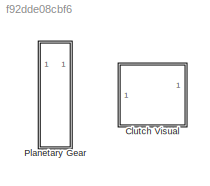
MODEL slx_f92dde08cbf6
KIND library
CONFIG SolverName = VariableStepAuto
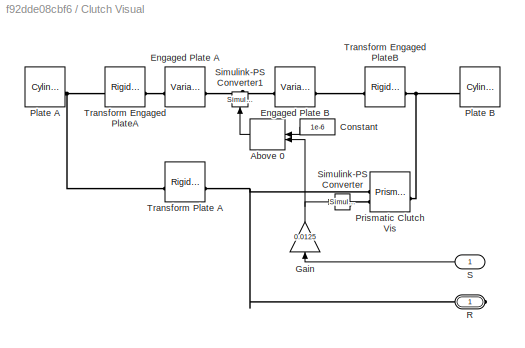
BLOCK [SubSystem] Clutch Visual
BLOCK [MinMax] Clutch Visual/Above 0
  Function = max
  Inputs = 2
  ZeroCross = off
BLOCK [Constant] Clutch Visual/Constant
  Value = 1e-6
BLOCK [Reference] Clutch Visual/Engaged Plate A  REF=sm_lib/Body Elements/Variable Mass/Variable
Cylindrical Solid
  NameLocation = top
  SourceBlock = sm_lib/Body Elements/Variable Mass/Variable\nCylindrical Solid
  SourceType = Variable\nCylindrical Solid
BLOCK [Reference] Clutch Visual/Engaged Plate B  REF=sm_lib/Body Elements/Variable Mass/Variable
Cylindrical Solid
  NameLocation = top
  SourceBlock = sm_lib/Body Elements/Variable Mass/Variable\nCylindrical Solid
  SourceType = Variable\nCylindrical Solid
BLOCK [Gain] Clutch Visual/Gain
  Gain = 0.0125
  NameLocation = left
BLOCK [Reference] Clutch Visual/Plate A  REF=sm_lib/Body Elements/Cylindrical Solid
  SourceBlock = sm_lib/Body Elements/Cylindrical Solid
  SourceType = Cylindrical Solid
BLOCK [Reference] Clutch Visual/Plate B  REF=sm_lib/Body Elements/Cylindrical Solid
  SourceBlock = sm_lib/Body Elements/Cylindrical Solid
  SourceType = Cylindrical Solid
BLOCK [Reference] Clutch Visual/Prismatic Clutch Vis  REF=sm_lib/Joints/Prismatic
Joint
  SourceBlock = sm_lib/Joints/Prismatic\nJoint
  SourceType = Prismatic\nJoint
BLOCK [PMIOPort] Clutch Visual/R
  Side = Right
BLOCK [Inport] Clutch Visual/S
BLOCK [Reference] Clutch Visual/Simulink-PS Converter  REF=nesl_utility/Simulink-PS
Converter
  NameLocation = top
  SourceBlock = nesl_utility/Simulink-PS\nConverter
  SourceType = Simulink-PS\nConverter
BLOCK [Reference] Clutch Visual/Simulink-PS Converter1  REF=nesl_utility/Simulink-PS
Converter
  SourceBlock = nesl_utility/Simulink-PS\nConverter
  SourceType = Simulink-PS\nConverter
BLOCK [Reference] Clutch Visual/Transform Engaged PlateA  REF=sm_lib/Frames and
Transforms/Rigid
Transform
  SourceBlock = sm_lib/Frames and\nTransforms/Rigid\nTransform
  SourceType = Rigid\nTransform
BLOCK [Reference] Clutch Visual/Transform Engaged PlateB  REF=sm_lib/Frames and
Transforms/Rigid
Transform
  SourceBlock = sm_lib/Frames and\nTransforms/Rigid\nTransform
  SourceType = Rigid\nTransform
BLOCK [Reference] Clutch Visual/Transform Plate A  REF=sm_lib/Frames and
Transforms/Rigid
Transform
  SourceBlock = sm_lib/Frames and\nTransforms/Rigid\nTransform
  SourceType = Rigid\nTransform
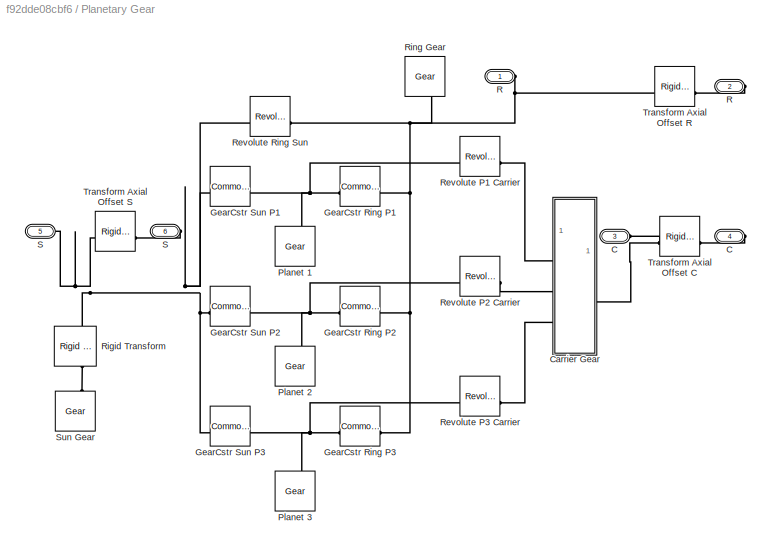
BLOCK [SubSystem] Planetary Gear
  Tag = PublishSubsystem
BLOCK [PMIOPort] Planetary Gear/   C
  Port = 3
  Side = Left
BLOCK [PMIOPort] Planetary Gear/   R
  Side = Left
BLOCK [PMIOPort] Planetary Gear/   S
  Port = 5
  Side = Left
BLOCK [PMIOPort] Planetary Gear/C
  Port = 4
  Side = Right
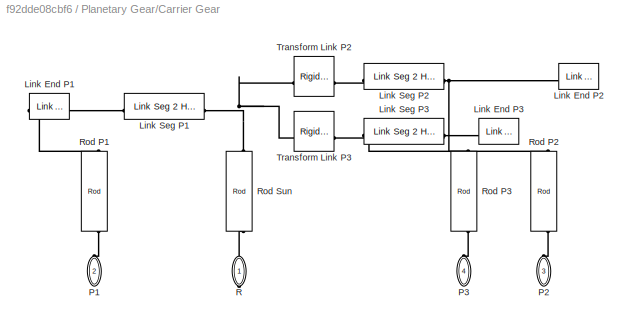
BLOCK [SubSystem] Planetary Gear/Carrier Gear
  Tag = PublishSubsystem
BLOCK [Reference] Planetary Gear/Carrier Gear/Link End P1  REF=Multibody_Parts_Lib/Linkages/Link End
  NameLocation = top
  SourceBlock = Multibody_Parts_Lib/Linkages/Link End
  SourceType = Link End
BLOCK [Reference] Planetary Gear/Carrier Gear/Link End P2  REF=Multibody_Parts_Lib/Linkages/Link End
  NameLocation = top
  SourceBlock = Multibody_Parts_Lib/Linkages/Link End
  SourceType = Link End
BLOCK [Reference] Planetary Gear/Carrier Gear/Link End P3  REF=Multibody_Parts_Lib/Linkages/Link End
  NameLocation = top
  SourceBlock = Multibody_Parts_Lib/Linkages/Link End
  SourceType = Link End
BLOCK [Reference] Planetary Gear/Carrier Gear/Link Seg P1  REF=Multibody_Parts_Lib/Linkages/Link Seg 2 Hole
  NameLocation = top
  SourceBlock = Multibody_Parts_Lib/Linkages/Link Seg 2 Hole
  SourceType = Link Segment with 2 Holes
BLOCK [Reference] Planetary Gear/Carrier Gear/Link Seg P2  REF=Multibody_Parts_Lib/Linkages/Link Seg 2 Hole
  NameLocation = top
  SourceBlock = Multibody_Parts_Lib/Linkages/Link Seg 2 Hole
  SourceType = Link Segment with 2 Holes
BLOCK [Reference] Planetary Gear/Carrier Gear/Link Seg P3  REF=Multibody_Parts_Lib/Linkages/Link Seg 2 Hole
  SourceBlock = Multibody_Parts_Lib/Linkages/Link Seg 2 Hole
  SourceType = Link Segment with 2 Holes
BLOCK [PMIOPort] Planetary Gear/Carrier Gear/P1
  NameLocation = left
  Port = 2
  Side = Left
BLOCK [PMIOPort] Planetary Gear/Carrier Gear/P2
  NameLocation = right
  Port = 3
  Side = Left
BLOCK [PMIOPort] Planetary Gear/Carrier Gear/P3
  NameLocation = right
  Port = 4
  Side = Left
BLOCK [PMIOPort] Planetary Gear/Carrier Gear/R
  NameLocation = right
  Side = Right
BLOCK [Reference] Planetary Gear/Carrier Gear/Rod P1  REF=Multibody_Parts_Lib/Basic/Rod
  NameLocation = left
  SourceBlock = Multibody_Parts_Lib/Basic/Rod
  SourceType = Rod
BLOCK [Reference] Planetary Gear/Carrier Gear/Rod P2  REF=Multibody_Parts_Lib/Basic/Rod
  NameLocation = left
  SourceBlock = Multibody_Parts_Lib/Basic/Rod
  SourceType = Rod
BLOCK [Reference] Planetary Gear/Carrier Gear/Rod P3  REF=Multibody_Parts_Lib/Basic/Rod
  NameLocation = left
  SourceBlock = Multibody_Parts_Lib/Basic/Rod
  SourceType = Rod
BLOCK [Reference] Planetary Gear/Carrier Gear/Rod Sun  REF=Multibody_Parts_Lib/Basic/Rod
  NameLocation = left
  SourceBlock = Multibody_Parts_Lib/Basic/Rod
  SourceType = Rod
BLOCK [Reference] Planetary Gear/Carrier Gear/Transform Link P2  REF=sm_lib/Frames and
Transforms/Rigid
Transform
  NameLocation = top
  SourceBlock = sm_lib/Frames and\nTransforms/Rigid\nTransform
  SourceType = Rigid\nTransform
BLOCK [Reference] Planetary Gear/Carrier Gear/Transform Link P3  REF=sm_lib/Frames and
Transforms/Rigid
Transform
  SourceBlock = sm_lib/Frames and\nTransforms/Rigid\nTransform
  SourceType = Rigid\nTransform
BLOCK [Reference] Planetary Gear/GearCstr Ring P1  REF=sm_lib/Gears and
Couplings/Gears/Common Gear
Constraint
  SourceBlock = sm_lib/Gears and\nCouplings/Gears/Common Gear\nConstraint
  SourceType = Common Gear\nConstraint
BLOCK [Reference] Planetary Gear/GearCstr Ring P2  REF=sm_lib/Gears and
Couplings/Gears/Common Gear
Constraint
  SourceBlock = sm_lib/Gears and\nCouplings/Gears/Common Gear\nConstraint
  SourceType = Common Gear\nConstraint
BLOCK [Reference] Planetary Gear/GearCstr Ring P3  REF=sm_lib/Gears and
Couplings/Gears/Common Gear
Constraint
  SourceBlock = sm_lib/Gears and\nCouplings/Gears/Common Gear\nConstraint
  SourceType = Common Gear\nConstraint
BLOCK [Reference] Planetary Gear/GearCstr Sun P1  REF=sm_lib/Gears and
Couplings/Gears/Common Gear
Constraint
  SourceBlock = sm_lib/Gears and\nCouplings/Gears/Common Gear\nConstraint
  SourceType = Common Gear\nConstraint
BLOCK [Reference] Planetary Gear/GearCstr Sun P2  REF=sm_lib/Gears and
Couplings/Gears/Common Gear
Constraint
  SourceBlock = sm_lib/Gears and\nCouplings/Gears/Common Gear\nConstraint
  SourceType = Common Gear\nConstraint
BLOCK [Reference] Planetary Gear/GearCstr Sun P3  REF=sm_lib/Gears and
Couplings/Gears/Common Gear
Constraint
  SourceBlock = sm_lib/Gears and\nCouplings/Gears/Common Gear\nConstraint
  SourceType = Common Gear\nConstraint
BLOCK [Reference] Planetary Gear/Planet 1  REF=Multibody_Parts_Lib/Gears/Gear
  NameLocation = right
  SourceBlock = Multibody_Parts_Lib/Gears/Gear
  SourceType = Gear
BLOCK [Reference] Planetary Gear/Planet 2  REF=Multibody_Parts_Lib/Gears/Gear
  NameLocation = right
  SourceBlock = Multibody_Parts_Lib/Gears/Gear
  SourceType = Gear
BLOCK [Reference] Planetary Gear/Planet 3  REF=Multibody_Parts_Lib/Gears/Gear
  NameLocation = right
  SourceBlock = Multibody_Parts_Lib/Gears/Gear
  SourceType = Gear
BLOCK [PMIOPort] Planetary Gear/R
  Port = 2
  Side = Right
BLOCK [Reference] Planetary Gear/Revolute P1 Carrier  REF=sm_lib/Joints/Revolute Joint
  SourceBlock = sm_lib/Joints/Revolute Joint
  SourceType = Revolute Joint
BLOCK [Reference] Planetary Gear/Revolute P2 Carrier  REF=sm_lib/Joints/Revolute Joint
  SourceBlock = sm_lib/Joints/Revolute Joint
  SourceType = Revolute Joint
BLOCK [Reference] Planetary Gear/Revolute P3 Carrier  REF=sm_lib/Joints/Revolute Joint
  SourceBlock = sm_lib/Joints/Revolute Joint
  SourceType = Revolute Joint
BLOCK [Reference] Planetary Gear/Revolute Ring Sun  REF=sm_lib/Joints/Revolute Joint
  NameLocation = top
  SourceBlock = sm_lib/Joints/Revolute Joint
  SourceType = Revolute Joint
BLOCK [Reference] Planetary Gear/Rigid Transform  REF=sm_lib/Frames and
Transforms/Rigid
Transform
  NameLocation = left
  SourceBlock = sm_lib/Frames and\nTransforms/Rigid\nTransform
  SourceType = Rigid\nTransform
BLOCK [Reference] Planetary Gear/Ring Gear  REF=Multibody_Parts_Lib/Gears/Gear
  NameLocation = left
  SourceBlock = Multibody_Parts_Lib/Gears/Gear
  SourceType = Gear
BLOCK [PMIOPort] Planetary Gear/S
  Port = 6
  Side = Right
BLOCK [Reference] Planetary Gear/Sun Gear  REF=Multibody_Parts_Lib/Gears/Gear
  NameLocation = right
  SourceBlock = Multibody_Parts_Lib/Gears/Gear
  SourceType = Gear
BLOCK [Reference] Planetary Gear/Transform Axial Offset C  REF=sm_lib/Frames and
Transforms/Rigid
Transform
  SourceBlock = sm_lib/Frames and\nTransforms/Rigid\nTransform
  SourceType = Rigid\nTransform
BLOCK [Reference] Planetary Gear/Transform Axial Offset R  REF=sm_lib/Frames and
Transforms/Rigid
Transform
  SourceBlock = sm_lib/Frames and\nTransforms/Rigid\nTransform
  SourceType = Rigid\nTransform
BLOCK [Reference] Planetary Gear/Transform Axial Offset S  REF=sm_lib/Frames and
Transforms/Rigid
Transform
  SourceBlock = sm_lib/Frames and\nTransforms/Rigid\nTransform
  SourceType = Rigid\nTransform
LINE Clutch Visual/Above 0:1 -> Clutch Visual/Simulink-PS Converter1:1
LINE Clutch Visual/Constant:1 -> Clutch Visual/Above 0:1
NET Clutch Visual/Gain:1 -> Clutch Visual/Above 0:2, Clutch Visual/Simulink-PS Converter:1
LINE Clutch Visual/S:1 -> Clutch Visual/Gain:1
PNET net1: Clutch Visual/Engaged Plate A:LConn1 -- Clutch Visual/Engaged Plate B:LConn1 -- Clutch Visual/Simulink-PS Converter1:RConn1
PLINE Clutch Visual/Engaged Plate A:RConn1 -- Clutch Visual/Transform Engaged PlateA:RConn1
PLINE Clutch Visual/Engaged Plate B:RConn1 -- Clutch Visual/Transform Engaged PlateB:LConn1
PNET net2: Clutch Visual/Plate A:LConn1 -- Clutch Visual/Transform Engaged PlateA:LConn1 -- Clutch Visual/Transform Plate A:RConn1
PNET net3: Clutch Visual/Plate B:LConn1 -- Clutch Visual/Prismatic Clutch Vis:RConn1 -- Clutch Visual/Transform Engaged PlateB:RConn1
PNET net4: Clutch Visual/Prismatic Clutch Vis:LConn1 -- Clutch Visual/R:RConn1 -- Clutch Visual/Transform Plate A:LConn1
PLINE Clutch Visual/Prismatic Clutch Vis:LConn2 -- Clutch Visual/Simulink-PS Converter:RConn1
PNET net5: Planetary Gear/   C:RConn1 -- Planetary Gear/Carrier Gear:RConn1 -- Planetary Gear/Transform Axial Offset C:LConn1
PNET net6: Planetary Gear/   R:RConn1 -- Planetary Gear/GearCstr Ring P1:LConn1 -- Planetary Gear/GearCstr Ring P2:LConn1 -- Planetary Gear/GearCstr Ring P3:LConn1 -- Planetary Gear/Revolute Ring Sun:LConn1 -- Planetary Gear/Ring Gear:RConn1 -- Planetary Gear/Transform Axial Offset R:LConn1
PNET net7: Planetary Gear/   S:RConn1 -- Planetary Gear/GearCstr Sun P1:LConn1 -- Planetary Gear/GearCstr Sun P2:LConn1 -- Planetary Gear/GearCstr Sun P3:LConn1 -- Planetary Gear/Revolute Ring Sun:RConn1 -- Planetary Gear/Rigid Transform:LConn1 -- Planetary Gear/Transform Axial Offset S:LConn1
PLINE Planetary Gear/C:RConn1 -- Planetary Gear/Transform Axial Offset C:RConn1
PNET net8: Planetary Gear/Carrier Gear/Link End P1:LConn1 -- Planetary Gear/Carrier Gear/Link Seg P1:RConn1 -- Planetary Gear/Carrier Gear/Rod P1:RConn1
PNET net9: Planetary Gear/Carrier Gear/Link End P2:LConn1 -- Planetary Gear/Carrier Gear/Link Seg P2:RConn1 -- Planetary Gear/Carrier Gear/Rod P2:RConn1
PNET net10: Planetary Gear/Carrier Gear/Link End P3:LConn1 -- Planetary Gear/Carrier Gear/Link Seg P3:RConn1 -- Planetary Gear/Carrier Gear/Rod P3:RConn1
PNET net11: Planetary Gear/Carrier Gear/Link Seg P1:LConn1 -- Planetary Gear/Carrier Gear/Rod Sun:RConn1 -- Planetary Gear/Carrier Gear/Transform Link P2:LConn1 -- Planetary Gear/Carrier Gear/Transform Link P3:LConn1
PLINE Planetary Gear/Carrier Gear/Link Seg P2:LConn1 -- Planetary Gear/Carrier Gear/Transform Link P2:RConn1
PLINE Planetary Gear/Carrier Gear/Link Seg P3:LConn1 -- Planetary Gear/Carrier Gear/Transform Link P3:RConn1
PLINE Planetary Gear/Carrier Gear/P1:RConn1 -- Planetary Gear/Carrier Gear/Rod P1:LConn1
PLINE Planetary Gear/Carrier Gear/P2:RConn1 -- Planetary Gear/Carrier Gear/Rod P2:LConn1
PLINE Planetary Gear/Carrier Gear/P3:RConn1 -- Planetary Gear/Carrier Gear/Rod P3:LConn1
PLINE Planetary Gear/Carrier Gear/R:RConn1 -- Planetary Gear/Carrier Gear/Rod Sun:LConn1
PLINE Planetary Gear/Carrier Gear:LConn1 -- Planetary Gear/Revolute P1 Carrier:RConn1
PLINE Planetary Gear/Carrier Gear:LConn2 -- Planetary Gear/Revolute P2 Carrier:RConn1
PLINE Planetary Gear/Carrier Gear:LConn3 -- Planetary Gear/Revolute P3 Carrier:RConn1
PNET net12: Planetary Gear/GearCstr Ring P1:RConn1 -- Planetary Gear/GearCstr Sun P1:RConn1 -- Planetary Gear/Planet 1:RConn1 -- Planetary Gear/Revolute P1 Carrier:LConn1
PNET net13: Planetary Gear/GearCstr Ring P2:RConn1 -- Planetary Gear/GearCstr Sun P2:RConn1 -- Planetary Gear/Planet 2:RConn1 -- Planetary Gear/Revolute P2 Carrier:LConn1
PNET net14: Planetary Gear/GearCstr Ring P3:RConn1 -- Planetary Gear/GearCstr Sun P3:RConn1 -- Planetary Gear/Planet 3:RConn1 -- Planetary Gear/Revolute P3 Carrier:LConn1
PLINE Planetary Gear/R:RConn1 -- Planetary Gear/Transform Axial Offset R:RConn1
PLINE Planetary Gear/Rigid Transform:RConn1 -- Planetary Gear/Sun Gear:RConn1
PLINE Planetary Gear/S:RConn1 -- Planetary Gear/Transform Axial Offset S:RConn1
note: NET lines group one-source signal fan-out (src -> all destinations, sorted); 1:1 wires keep LINE; PNET lines group multi-terminal physical nets as a canonical sorted terminal list (undirected conserving connections); 2-terminal nets keep the pairwise PLINE form
